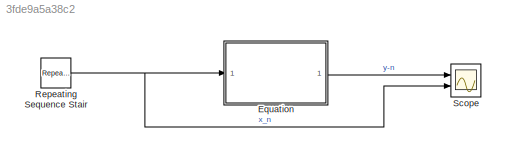
MODEL slx_3fde9a5a38c2
KIND model
CONFIG AbsTol = auto
CONFIG EnableMultiTasking = off
CONFIG FixedStep = auto
CONFIG MaxStep = auto
CONFIG MinStep = auto
CONFIG RelTol = 1e-3
CONFIG SampleTimeConstraint = Unconstrained
CONFIG SolverName = VariableStepAuto
CONFIG StartTime = 0.0
CONFIG StopTime = 10.0
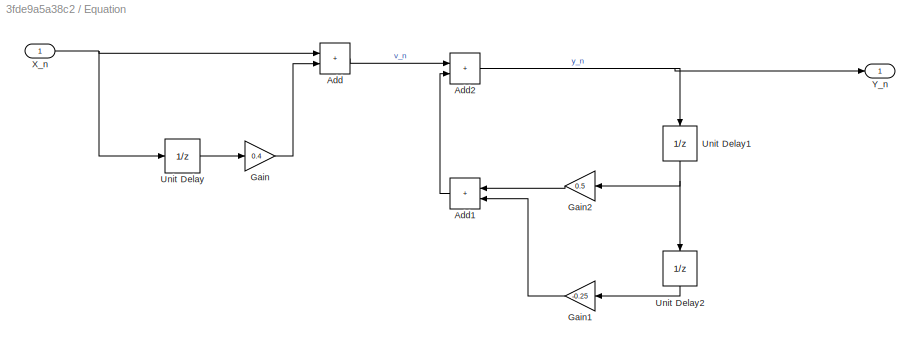
BLOCK [SubSystem] Equation
  Ports = [1, 1]
  RequestExecContextInheritance = off
BLOCK [Sum] Equation/Add
  IconShape = rectangular
  Ports = [2, 1]
BLOCK [Sum] Equation/Add1
  IconShape = rectangular
  NameLocation = top
  Ports = [2, 1]
BLOCK [Sum] Equation/Add2
  IconShape = rectangular
  Ports = [2, 1]
BLOCK [Gain] Equation/Gain
  Gain = 0.4
BLOCK [Gain] Equation/Gain1
  Gain = -0.25
  NameLocation = top
BLOCK [Gain] Equation/Gain2
  Gain = 0.5
  NameLocation = top
BLOCK [UnitDelay] Equation/Unit Delay
  HasFrameUpgradeWarning = on
  SampleTime = -1
BLOCK [UnitDelay] Equation/Unit Delay1
  HasFrameUpgradeWarning = on
  NameLocation = left
  SampleTime = -1
BLOCK [UnitDelay] Equation/Unit Delay2
  HasFrameUpgradeWarning = on
  NameLocation = left
  SampleTime = -1
BLOCK [Inport] Equation/X_n
BLOCK [Outport] Equation/Y_n
BLOCK [Reference] Repeating Sequence Stair  REF=simulink/Sources/Repeating
Sequence
Stair
  Ports = [0, 1]
  SourceBlock = simulink/Sources/Repeating\nSequence\nStair
  SourceProductBaseCode = SL
  SourceType = Repeating Sequence Stair
BLOCK [Scope] Scope
  Floating = off
  NumInputPorts = 2
  Ports = [2]
  ScopeSpecificationString = Simulink.scopes.TimeScopeBlockCfg('CurrentConfiguration', extmgr.ConfigurationSet(extmgr.Configuration('Core','General UI',true),extmgr.Configuration('Core','Source UI',true),extmgr.Configuration('Sources','WiredSimulink',true),extmgr.Configuration('Visuals','Time Domain',true,'SerializedDisplays',{struct('MinYLimReal','-0.26563','MaxYLimReal','1.14063','YLabelReal','','MinYLimMag','0.00000','MaxY...<+2010ch>
LINE Equation/Add1:1 -> Equation/Add2:2
NET Equation/Add2:1 -> Equation/Unit Delay1:1, Equation/Y_n:1
LINE Equation/Add:1 -> Equation/Add2:1
LINE Equation/Gain1:1 -> Equation/Add1:2
LINE Equation/Gain2:1 -> Equation/Add1:1
LINE Equation/Gain:1 -> Equation/Add:2
NET Equation/Unit Delay1:1 -> Equation/Gain2:1, Equation/Unit Delay2:1
LINE Equation/Unit Delay2:1 -> Equation/Gain1:1
LINE Equation/Unit Delay:1 -> Equation/Gain:1
NET Equation/X_n:1 -> Equation/Add:1, Equation/Unit Delay:1
LINE Equation:1 -> Scope:1
NET Repeating Sequence Stair:1 -> Equation:1, Scope:2
note: NET lines group one-source signal fan-out (src -> all destinations, sorted); 1:1 wires keep LINE
